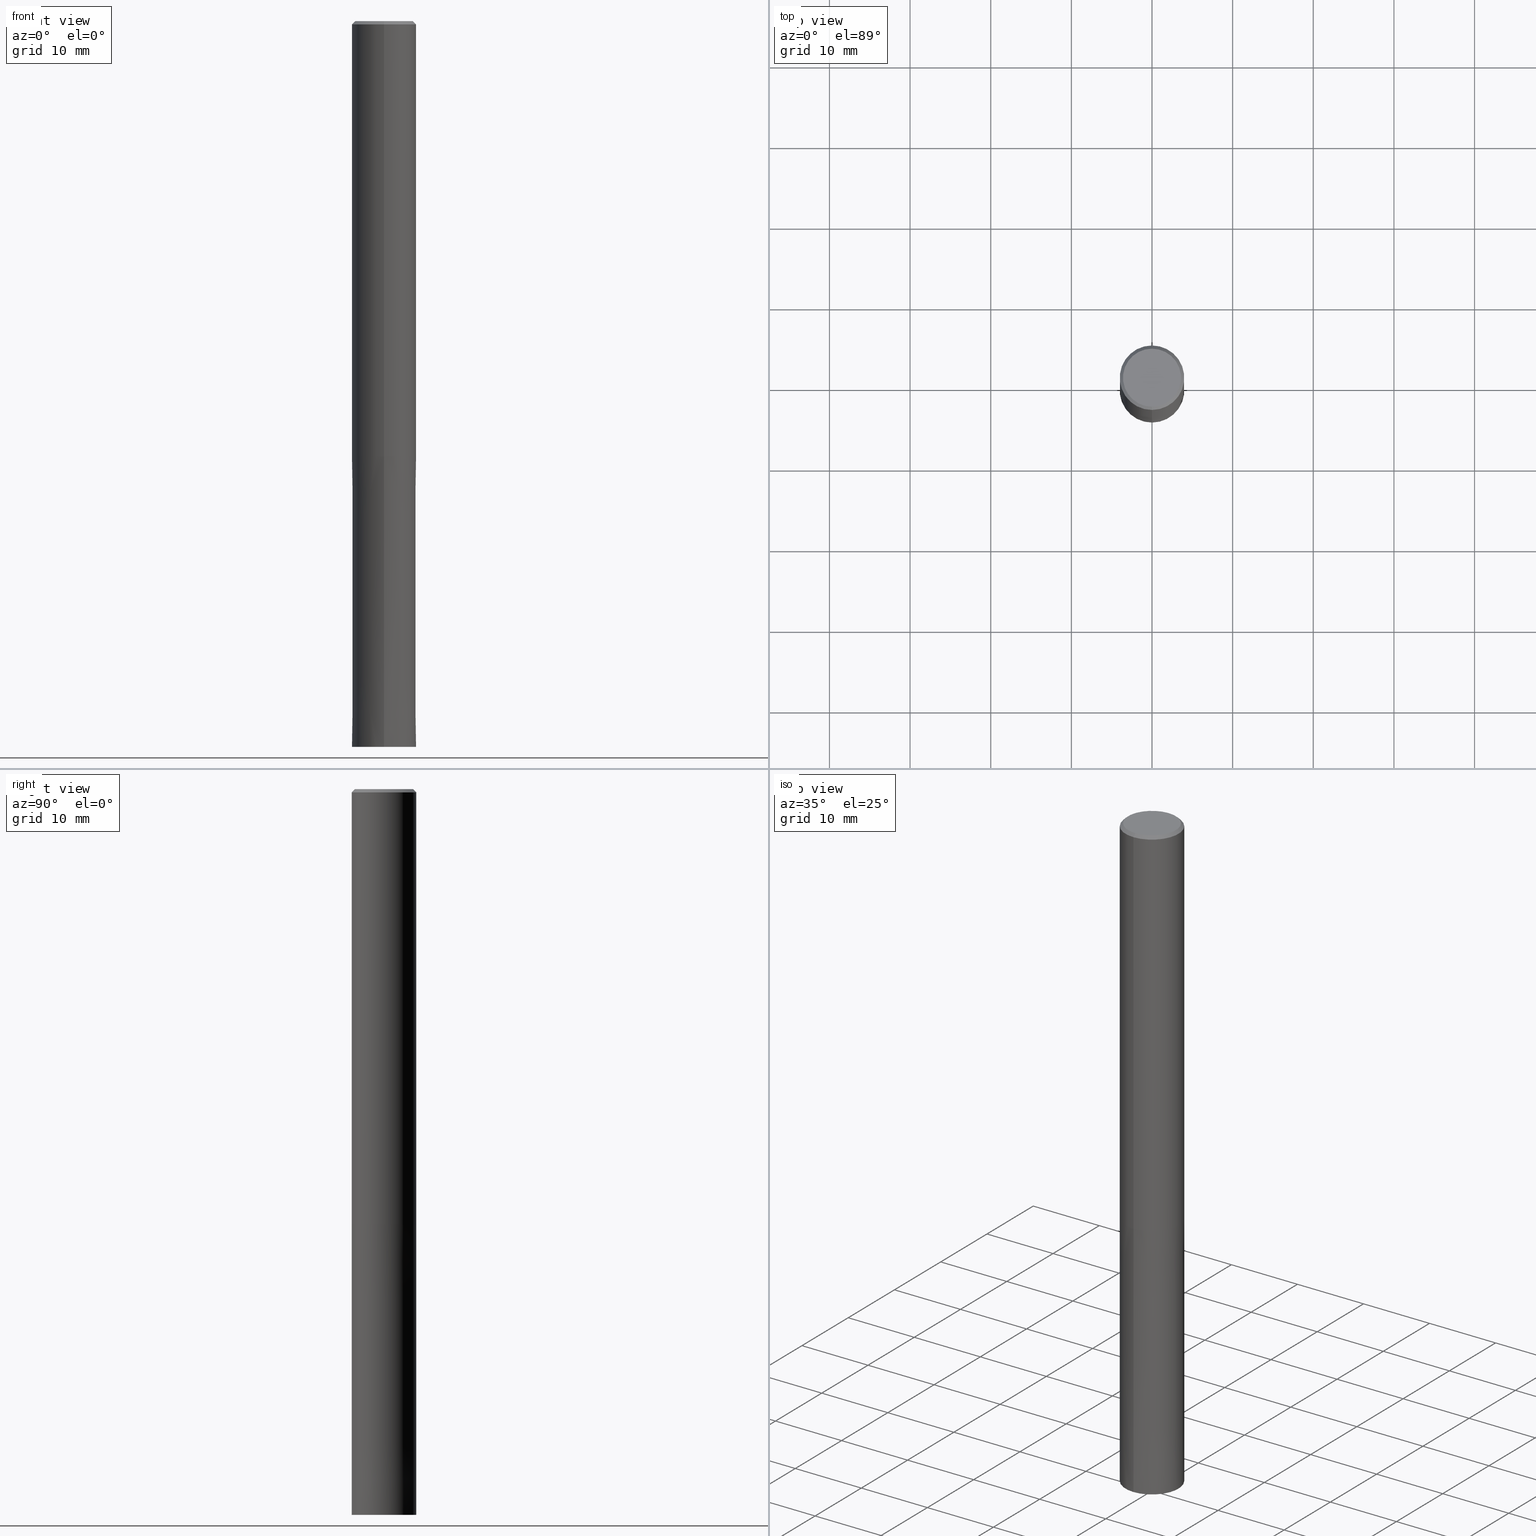
[diagram: canonical four-view strip — front | top / right | iso, engineering-drawing reading convention]
A machine part, canonical four-view strip (front | top / right | iso — engineering-drawing reading convention). The complete STEP part file that produces these views, byte-faithful:
ISO-10303-21;
HEADER;
FILE_DESCRIPTION(('no description'),'unknown implementation level');
FILE_NAME('HMS6080-3600-Huellk.stp','  ',('CIMSOURCE GmbH'),('CADClick - KiM GmbH - www.kimweb.de'),'unknown preprocess','ACIS','unknown authorization');
FILE_SCHEMA(('automotive_design'));
ENDSEC;
DATA;
#1=MECHANICAL_DESIGN_GEOMETRIC_PRESENTATION_REPRESENTATION(' ',(#14,#15,#16,#17,#18,#19,#20,#21,#22,#23,#24,#25,#26,#27,#28,#29,#30,#31,#32,#33,#34,#35,#36,#37,#38,#39,#40,#41,#42,#43,#44,#45,#46,#47,#48,#49,#50,#51,#52,#53,#54,#55,#56,#57,#58,#59,#60,#61,#62,#63,#64,#65,#66,#67,#68,#69,#70,#71,#72,#73,#74,#75,#76),#10);
#2=PRODUCT_DEFINITION_CONTEXT('',#77,'design');
#3=APPLICATION_PROTOCOL_DEFINITION('INTERNATIONAL STANDARD','automotive_design',1994,#77);
#4=PRODUCT_CATEGORY_RELATIONSHIP('NONE','NONE',#78,#79);
#5=SHAPE_DEFINITION_REPRESENTATION(#80,#81);
#6=PRODUCT_DEFINITION_CONTEXT('',#82,'design');
#7=APPLICATION_PROTOCOL_DEFINITION('INTERNATIONAL STANDARD','automotive_design',1994,#82);
#8=PRODUCT_CATEGORY_RELATIONSHIP('NONE','NONE',#83,#84);
#9=SHAPE_DEFINITION_REPRESENTATION(#85,#86);
#10= (GEOMETRIC_REPRESENTATION_CONTEXT(3)GLOBAL_UNCERTAINTY_ASSIGNED_CONTEXT((#89))GLOBAL_UNIT_ASSIGNED_CONTEXT((#91,#92,#93))REPRESENTATION_CONTEXT('NONE','WORKSPACE'));
#14=STYLED_ITEM('',(#95),#96);
#15=STYLED_ITEM('',(#97),#98);
#16=STYLED_ITEM('',(#99),#100);
#17=STYLED_ITEM('',(#101),#102);
#18=STYLED_ITEM('',(#103),#104);
#19=STYLED_ITEM('',(#105),#106);
#20=STYLED_ITEM('',(#107),#108);
#21=STYLED_ITEM('',(#109),#110);
#22=STYLED_ITEM('',(#111),#112);
#23=STYLED_ITEM('',(#113),#114);
#24=STYLED_ITEM('',(#115),#116);
#25=STYLED_ITEM('',(#117),#118);
#26=STYLED_ITEM('',(#119),#120);
#27=STYLED_ITEM('',(#121),#122);
#28=STYLED_ITEM('',(#123),#124);
#29=STYLED_ITEM('',(#125),#126);
#30=STYLED_ITEM('',(#127),#128);
#31=STYLED_ITEM('',(#129),#130);
#32=STYLED_ITEM('',(#131),#132);
#33=STYLED_ITEM('',(#133),#134);
#34=STYLED_ITEM('',(#135),#136);
#35=STYLED_ITEM('',(#137),#138);
#36=STYLED_ITEM('',(#139),#140);
#37=STYLED_ITEM('',(#141),#142);
#38=STYLED_ITEM('',(#143),#144);
#39=STYLED_ITEM('',(#145),#146);
#40=STYLED_ITEM('',(#147),#148);
#41=STYLED_ITEM('',(#149),#150);
#42=STYLED_ITEM('',(#151),#152);
#43=STYLED_ITEM('',(#153),#154);
#44=STYLED_ITEM('',(#155),#156);
#45=STYLED_ITEM('',(#157),#158);
#46=STYLED_ITEM('',(#159),#160);
#47=STYLED_ITEM('',(#161),#162);
#48=STYLED_ITEM('',(#163),#164);
#49=STYLED_ITEM('',(#165),#166);
#50=STYLED_ITEM('',(#167),#168);
#51=STYLED_ITEM('',(#169),#170);
#52=STYLED_ITEM('',(#171),#172);
#53=STYLED_ITEM('',(#173),#174);
#54=STYLED_ITEM('',(#175),#176);
#55=STYLED_ITEM('',(#177),#178);
#56=STYLED_ITEM('',(#179),#180);
#57=STYLED_ITEM('',(#181),#182);
#58=STYLED_ITEM('',(#183),#184);
#59=STYLED_ITEM('',(#185),#186);
#60=STYLED_ITEM('',(#187),#188);
#61=STYLED_ITEM('',(#189),#190);
#62=STYLED_ITEM('',(#191),#192);
#63=STYLED_ITEM('',(#193),#194);
#64=STYLED_ITEM('',(#195),#196);
#65=STYLED_ITEM('',(#197),#198);
#66=STYLED_ITEM('',(#199),#200);
#67=STYLED_ITEM('',(#201),#202);
#68=STYLED_ITEM('',(#203),#204);
#69=STYLED_ITEM('',(#205),#206);
#70=STYLED_ITEM('',(#207),#208);
#71=STYLED_ITEM('',(#209),#210);
#72=STYLED_ITEM('',(#211),#212);
#73=STYLED_ITEM('',(#213),#214);
#74=STYLED_ITEM('',(#215),#216);
#75=STYLED_ITEM('',(#217),#218);
#76=STYLED_ITEM('',(#219),#220);
#77=APPLICATION_CONTEXT(' ');
#78=PRODUCT_CATEGORY('part','NONE');
#79=PRODUCT_RELATED_PRODUCT_CATEGORY('detail',' ',(#221));
#80=PRODUCT_DEFINITION_SHAPE('NONE','NONE',#222);
#81=ADVANCED_BREP_SHAPE_REPRESENTATION('1',(#212,#223),#10);
#82=APPLICATION_CONTEXT(' ');
#83=PRODUCT_CATEGORY('part','NONE');
#84=PRODUCT_RELATED_PRODUCT_CATEGORY('detail',' ',(#224));
#85=PRODUCT_DEFINITION_SHAPE('NONE','NONE',#225);
#86=ADVANCED_BREP_SHAPE_REPRESENTATION('2',(#110,#226),#10);
#89=UNCERTAINTY_MEASURE_WITH_UNIT(LENGTH_MEASURE(1.0E-006),#91,'','');
#91= (CONVERSION_BASED_UNIT('MILLIMETRE',#229)LENGTH_UNIT()NAMED_UNIT(#232));
#92= (NAMED_UNIT(#234)PLANE_ANGLE_UNIT()SI_UNIT($,.RADIAN.));
#93= (NAMED_UNIT(#234)SOLID_ANGLE_UNIT()SI_UNIT($,.STERADIAN.));
#95=PRESENTATION_STYLE_ASSIGNMENT((#240));
#96=ADVANCED_FACE('',(#241),#242,.T.);
#97=PRESENTATION_STYLE_ASSIGNMENT((#243));
#98=EDGE_CURVE('',#214,#142,#244,.T.);
#99=PRESENTATION_STYLE_ASSIGNMENT((#245));
#100=EDGE_CURVE('',#174,#206,#246,.T.);
#101=PRESENTATION_STYLE_ASSIGNMENT((#247));
#102=EDGE_CURVE('',#152,#182,#248,.T.);
#103=PRESENTATION_STYLE_ASSIGNMENT((#249));
#104=EDGE_CURVE('',#164,#202,#250,.T.);
#105=PRESENTATION_STYLE_ASSIGNMENT((#251));
#106=EDGE_CURVE('',#206,#108,#252,.T.);
#107=PRESENTATION_STYLE_ASSIGNMENT((#253));
#108=VERTEX_POINT('',#254);
#109=PRESENTATION_STYLE_ASSIGNMENT((#255));
#110=MANIFOLD_SOLID_BREP('2',#256);
#111=PRESENTATION_STYLE_ASSIGNMENT((#257));
#112=VERTEX_POINT('',#258);
#113=PRESENTATION_STYLE_ASSIGNMENT((#259));
#114=ADVANCED_FACE('',(#260),#261,.T.);
#115=PRESENTATION_STYLE_ASSIGNMENT((#262));
#116=ADVANCED_FACE('',(#263),#264,.T.);
#117=PRESENTATION_STYLE_ASSIGNMENT((#265));
#118=EDGE_CURVE('',#188,#164,#266,.T.);
#119=PRESENTATION_STYLE_ASSIGNMENT((#267));
#120=ADVANCED_FACE('',(#268),#269,.F.);
#121=PRESENTATION_STYLE_ASSIGNMENT((#270));
#122=EDGE_CURVE('',#214,#218,#271,.T.);
#123=PRESENTATION_STYLE_ASSIGNMENT((#272));
#124=EDGE_CURVE('',#108,#206,#273,.T.);
#125=PRESENTATION_STYLE_ASSIGNMENT((#274));
#126=ADVANCED_FACE('',(#275),#276,.T.);
#127=PRESENTATION_STYLE_ASSIGNMENT((#277));
#128=EDGE_CURVE('',#142,#112,#278,.T.);
#129=PRESENTATION_STYLE_ASSIGNMENT((#279));
#130=ADVANCED_FACE('',(#280,#281),#282,.T.);
#131=PRESENTATION_STYLE_ASSIGNMENT((#283));
#132=ADVANCED_FACE('',(#284),#285,.F.);
#133=PRESENTATION_STYLE_ASSIGNMENT((#286));
#134=EDGE_CURVE('',#218,#214,#287,.T.);
#135=PRESENTATION_STYLE_ASSIGNMENT((#288));
#136=ADVANCED_FACE('',(#289),#290,.T.);
#137=PRESENTATION_STYLE_ASSIGNMENT((#291));
#138=EDGE_CURVE('',#202,#164,#292,.T.);
#139=PRESENTATION_STYLE_ASSIGNMENT((#293));
#140=VERTEX_POINT('',#294);
#141=PRESENTATION_STYLE_ASSIGNMENT((#295));
#142=VERTEX_POINT('',#296);
#143=PRESENTATION_STYLE_ASSIGNMENT((#297));
#144=EDGE_CURVE('',#202,#170,#298,.T.);
#145=PRESENTATION_STYLE_ASSIGNMENT((#299));
#146=EDGE_CURVE('',#196,#150,#300,.T.);
#147=PRESENTATION_STYLE_ASSIGNMENT((#301));
#148=EDGE_CURVE('',#140,#152,#302,.T.);
#149=PRESENTATION_STYLE_ASSIGNMENT((#303));
#150=VERTEX_POINT('',#304);
#151=PRESENTATION_STYLE_ASSIGNMENT((#305));
#152=VERTEX_POINT('',#306);
#153=PRESENTATION_STYLE_ASSIGNMENT((#307));
#154=EDGE_CURVE('',#170,#188,#308,.T.);
#155=PRESENTATION_STYLE_ASSIGNMENT((#309));
#156=EDGE_CURVE('',#178,#174,#310,.T.);
#157=PRESENTATION_STYLE_ASSIGNMENT((#311));
#158=EDGE_CURVE('',#182,#200,#312,.T.);
#159=PRESENTATION_STYLE_ASSIGNMENT((#313));
#160=ADVANCED_FACE('',(#314,#315),#316,.T.);
#161=PRESENTATION_STYLE_ASSIGNMENT((#317));
#162=ADVANCED_FACE('',(#318),#319,.T.);
#163=PRESENTATION_STYLE_ASSIGNMENT((#320));
#164=VERTEX_POINT('',#321);
#165=PRESENTATION_STYLE_ASSIGNMENT((#322));
#166=EDGE_CURVE('',#182,#150,#323,.T.);
#167=PRESENTATION_STYLE_ASSIGNMENT((#324));
#168=EDGE_CURVE('',#150,#140,#325,.T.);
#169=PRESENTATION_STYLE_ASSIGNMENT((#326));
#170=VERTEX_POINT('',#327);
#171=PRESENTATION_STYLE_ASSIGNMENT((#328));
#172=EDGE_CURVE('',#200,#196,#329,.T.);
#173=PRESENTATION_STYLE_ASSIGNMENT((#330));
#174=VERTEX_POINT('',#331);
#175=PRESENTATION_STYLE_ASSIGNMENT((#332));
#176=ADVANCED_FACE('',(#333),#334,.T.);
#177=PRESENTATION_STYLE_ASSIGNMENT((#335));
#178=VERTEX_POINT('',#336);
#179=PRESENTATION_STYLE_ASSIGNMENT((#337));
#180=EDGE_CURVE('',#152,#140,#338,.T.);
#181=PRESENTATION_STYLE_ASSIGNMENT((#339));
#182=VERTEX_POINT('',#340);
#183=PRESENTATION_STYLE_ASSIGNMENT((#341));
#184=ADVANCED_FACE('',(#342),#343,.T.);
#185=PRESENTATION_STYLE_ASSIGNMENT((#344));
#186=ADVANCED_FACE('',(#345,#346),#347,.T.);
#187=PRESENTATION_STYLE_ASSIGNMENT((#348));
#188=VERTEX_POINT('',#349);
#189=PRESENTATION_STYLE_ASSIGNMENT((#350));
#190=EDGE_CURVE('',#174,#178,#351,.T.);
#191=PRESENTATION_STYLE_ASSIGNMENT((#352));
#192=ADVANCED_FACE('',(#353),#354,.T.);
#193=PRESENTATION_STYLE_ASSIGNMENT((#355));
#194=EDGE_CURVE('',#112,#142,#356,.T.);
#195=PRESENTATION_STYLE_ASSIGNMENT((#357));
#196=VERTEX_POINT('',#358);
#197=PRESENTATION_STYLE_ASSIGNMENT((#359));
#198=EDGE_CURVE('',#108,#178,#360,.T.);
#199=PRESENTATION_STYLE_ASSIGNMENT((#361));
#200=VERTEX_POINT('',#362);
#201=PRESENTATION_STYLE_ASSIGNMENT((#363));
#202=VERTEX_POINT('',#364);
#203=PRESENTATION_STYLE_ASSIGNMENT((#365));
#204=ADVANCED_FACE('',(#366),#367,.T.);
#205=PRESENTATION_STYLE_ASSIGNMENT((#368));
#206=VERTEX_POINT('',#369);
#207=PRESENTATION_STYLE_ASSIGNMENT((#370));
#208=EDGE_CURVE('',#196,#200,#371,.T.);
#209=PRESENTATION_STYLE_ASSIGNMENT((#372));
#210=EDGE_CURVE('',#150,#182,#373,.T.);
#211=PRESENTATION_STYLE_ASSIGNMENT((#374));
#212=MANIFOLD_SOLID_BREP('1',#375);
#213=PRESENTATION_STYLE_ASSIGNMENT((#376));
#214=VERTEX_POINT('',#377);
#215=PRESENTATION_STYLE_ASSIGNMENT((#378));
#216=EDGE_CURVE('',#112,#218,#379,.T.);
#217=PRESENTATION_STYLE_ASSIGNMENT((#380));
#218=VERTEX_POINT('',#381);
#219=PRESENTATION_STYLE_ASSIGNMENT((#382));
#220=EDGE_CURVE('',#188,#170,#383,.T.);
#221=PRODUCT('1','1','PART-1-DESC',(#384));
#222=PRODUCT_DEFINITION('NONE','NONE',#385,#2);
#223=AXIS2_PLACEMENT_3D('',#386,#387,#388);
#224=PRODUCT('2','2','PART-2-DESC',(#389));
#225=PRODUCT_DEFINITION('NONE','NONE',#390,#6);
#226=AXIS2_PLACEMENT_3D('',#391,#392,#393);
#229=LENGTH_MEASURE_WITH_UNIT(LENGTH_MEASURE(1.0),#394);
#232=DIMENSIONAL_EXPONENTS(1.0,0.0,0.0,0.0,0.0,0.0,0.0);
#234=DIMENSIONAL_EXPONENTS(0.0,0.0,0.0,0.0,0.0,0.0,0.0);
#240=SURFACE_STYLE_USAGE(.BOTH.,#395);
#241=FACE_OUTER_BOUND('',#396,.T.);
#242=CYLINDRICAL_SURFACE('',#397,1.8);
#243=CURVE_STYLE('',#398,POSITIVE_LENGTH_MEASURE(1.0E-006),#399);
#244=LINE('',#400,#401);
#245=CURVE_STYLE('',#402,POSITIVE_LENGTH_MEASURE(1.0E-006),#403);
#246=LINE('',#404,#405);
#247=CURVE_STYLE('',#406,POSITIVE_LENGTH_MEASURE(1.0E-006),#407);
#248=LINE('',#408,#409);
#249=CURVE_STYLE('',#410,POSITIVE_LENGTH_MEASURE(1.0E-006),#411);
#250=CIRCLE('',#412,1.8);
#251=CURVE_STYLE('',#413,POSITIVE_LENGTH_MEASURE(1.0E-006),#414);
#252=CIRCLE('',#415,3.9999);
#253=POINT_STYLE(' ',#416,POSITIVE_LENGTH_MEASURE(1.0E-006),#417);
#254=CARTESIAN_POINT('',(0.0,3.9999,-54.0));
#255=SURFACE_STYLE_USAGE(.BOTH.,#418);
#256=CLOSED_SHELL('',(#132,#162,#160,#126,#130,#120));
#257=POINT_STYLE(' ',#419,POSITIVE_LENGTH_MEASURE(1.0E-006),#420);
#258=CARTESIAN_POINT('',(0.0,1.8,-54.0));
#259=SURFACE_STYLE_USAGE(.BOTH.,#421);
#260=FACE_OUTER_BOUND('',#422,.T.);
#261=PLANE('',#423);
#262=SURFACE_STYLE_USAGE(.BOTH.,#424);
#263=FACE_OUTER_BOUND('',#425,.T.);
#264=CONICAL_SURFACE('',#426,3.8,0.78539816339745);
#265=CURVE_STYLE('',#427,POSITIVE_LENGTH_MEASURE(1.0E-006),#428);
#266=LINE('',#429,#430);
#267=SURFACE_STYLE_USAGE(.BOTH.,#431);
#268=FACE_OUTER_BOUND('',#432,.T.);
#269=CYLINDRICAL_SURFACE('',#433,1.8);
#270=CURVE_STYLE('',#434,POSITIVE_LENGTH_MEASURE(1.0E-006),#435);
#271=CIRCLE('',#436,1.8);
#272=CURVE_STYLE('',#437,POSITIVE_LENGTH_MEASURE(1.0E-006),#438);
#273=CIRCLE('',#439,3.9999);
#274=SURFACE_STYLE_USAGE(.BOTH.,#440);
#275=FACE_OUTER_BOUND('',#441,.T.);
#276=CONICAL_SURFACE('',#442,3.99995,2.7777777777765E-006);
#277=CURVE_STYLE('',#443,POSITIVE_LENGTH_MEASURE(1.0E-006),#444);
#278=CIRCLE('',#445,1.8);
#279=SURFACE_STYLE_USAGE(.BOTH.,#446);
#280=FACE_OUTER_BOUND('',#447,.T.);
#281=FACE_BOUND('',#448,.T.);
#282=PLANE('',#449);
#283=SURFACE_STYLE_USAGE(.BOTH.,#450);
#284=FACE_OUTER_BOUND('',#451,.T.);
#285=CYLINDRICAL_SURFACE('',#452,1.8);
#286=CURVE_STYLE('',#453,POSITIVE_LENGTH_MEASURE(1.0E-006),#454);
#287=CIRCLE('',#455,1.8);
#288=SURFACE_STYLE_USAGE(.BOTH.,#456);
#289=FACE_OUTER_BOUND('',#457,.T.);
#290=CONICAL_SURFACE('',#458,3.8,0.78539816339745);
#291=CURVE_STYLE('',#459,POSITIVE_LENGTH_MEASURE(1.0E-006),#460);
#292=CIRCLE('',#461,1.8);
#293=POINT_STYLE(' ',#462,POSITIVE_LENGTH_MEASURE(1.0E-006),#463);
#294=CARTESIAN_POINT('',(4.40858287376056E-016,-3.6,0.0));
#295=POINT_STYLE(' ',#464,POSITIVE_LENGTH_MEASURE(1.0E-006),#465);
#296=CARTESIAN_POINT('',(2.20429143688028E-016,-1.8,-54.0));
#297=CURVE_STYLE('',#466,POSITIVE_LENGTH_MEASURE(1.0E-006),#467);
#298=LINE('',#468,#469);
#299=CURVE_STYLE('',#470,POSITIVE_LENGTH_MEASURE(1.0E-006),#471);
#300=LINE('',#472,#473);
#301=CURVE_STYLE('',#474,POSITIVE_LENGTH_MEASURE(1.0E-006),#475);
#302=CIRCLE('',#476,3.6);
#303=POINT_STYLE(' ',#477,POSITIVE_LENGTH_MEASURE(1.0E-006),#478);
#304=CARTESIAN_POINT('',(4.89842541528951E-016,-4.0,-0.399999999999999));
#305=POINT_STYLE(' ',#479,POSITIVE_LENGTH_MEASURE(1.0E-006),#480);
#306=CARTESIAN_POINT('',(0.0,3.6,0.0));
#307=CURVE_STYLE('',#481,POSITIVE_LENGTH_MEASURE(1.0E-006),#482);
#308=CIRCLE('',#483,1.8);
#309=CURVE_STYLE('',#484,POSITIVE_LENGTH_MEASURE(1.0E-006),#485);
#310=CIRCLE('',#486,4.0);
#311=CURVE_STYLE('',#487,POSITIVE_LENGTH_MEASURE(1.0E-006),#488);
#312=LINE('',#489,#490);
#313=SURFACE_STYLE_USAGE(.BOTH.,#491);
#314=FACE_OUTER_BOUND('',#492,.T.);
#315=FACE_BOUND('',#493,.T.);
#316=PLANE('',#494);
#317=SURFACE_STYLE_USAGE(.BOTH.,#495);
#318=FACE_OUTER_BOUND('',#496,.T.);
#319=CONICAL_SURFACE('',#497,3.99995,2.7777777777765E-006);
#320=POINT_STYLE(' ',#498,POSITIVE_LENGTH_MEASURE(1.0E-006),#499);
#321=CARTESIAN_POINT('',(0.0,1.8,-89.9));
#322=CURVE_STYLE('',#500,POSITIVE_LENGTH_MEASURE(1.0E-006),#501);
#323=CIRCLE('',#502,4.0);
#324=CURVE_STYLE('',#503,POSITIVE_LENGTH_MEASURE(1.0E-006),#504);
#325=LINE('',#505,#506);
#326=POINT_STYLE(' ',#507,POSITIVE_LENGTH_MEASURE(1.0E-006),#508);
#327=CARTESIAN_POINT('',(2.20429143688028E-016,-1.8,-54.0));
#328=CURVE_STYLE('',#509,POSITIVE_LENGTH_MEASURE(1.0E-006),#510);
#329=CIRCLE('',#511,4.0);
#330=POINT_STYLE(' ',#512,POSITIVE_LENGTH_MEASURE(1.0E-006),#513);
#331=CARTESIAN_POINT('',(4.89842541528951E-016,-4.0,-90.0));
#332=SURFACE_STYLE_USAGE(.BOTH.,#514);
#333=FACE_OUTER_BOUND('',#515,.T.);
#334=CYLINDRICAL_SURFACE('',#516,4.0);
#335=POINT_STYLE(' ',#517,POSITIVE_LENGTH_MEASURE(1.0E-006),#518);
#336=CARTESIAN_POINT('',(0.0,4.0,-90.0));
#337=CURVE_STYLE('',#519,POSITIVE_LENGTH_MEASURE(1.0E-006),#520);
#338=CIRCLE('',#521,3.6);
#339=POINT_STYLE(' ',#522,POSITIVE_LENGTH_MEASURE(1.0E-006),#523);
#340=CARTESIAN_POINT('',(0.0,4.0,-0.399999999999999));
#341=SURFACE_STYLE_USAGE(.BOTH.,#524);
#342=FACE_OUTER_BOUND('',#525,.T.);
#343=CYLINDRICAL_SURFACE('',#526,4.0);
#344=SURFACE_STYLE_USAGE(.BOTH.,#527);
#345=FACE_OUTER_BOUND('',#528,.T.);
#346=FACE_BOUND('',#529,.T.);
#347=PLANE('',#530);
#348=POINT_STYLE(' ',#531,POSITIVE_LENGTH_MEASURE(1.0E-006),#532);
#349=CARTESIAN_POINT('',(0.0,1.8,-54.0));
#350=CURVE_STYLE('',#533,POSITIVE_LENGTH_MEASURE(1.0E-006),#534);
#351=CIRCLE('',#535,4.0);
#352=SURFACE_STYLE_USAGE(.BOTH.,#536);
#353=FACE_OUTER_BOUND('',#537,.T.);
#354=PLANE('',#538);
#355=CURVE_STYLE('',#539,POSITIVE_LENGTH_MEASURE(1.0E-006),#540);
#356=CIRCLE('',#541,1.8);
#357=POINT_STYLE(' ',#542,POSITIVE_LENGTH_MEASURE(1.0E-006),#543);
#358=CARTESIAN_POINT('',(4.89842541528951E-016,-4.0,-54.0));
#359=CURVE_STYLE('',#544,POSITIVE_LENGTH_MEASURE(1.0E-006),#545);
#360=LINE('',#546,#547);
#361=POINT_STYLE(' ',#548,POSITIVE_LENGTH_MEASURE(1.0E-006),#549);
#362=CARTESIAN_POINT('',(0.0,4.0,-54.0));
#363=POINT_STYLE(' ',#550,POSITIVE_LENGTH_MEASURE(1.0E-006),#551);
#364=CARTESIAN_POINT('',(2.20429143688028E-016,-1.8,-89.9));
#365=SURFACE_STYLE_USAGE(.BOTH.,#552);
#366=FACE_OUTER_BOUND('',#553,.T.);
#367=CYLINDRICAL_SURFACE('',#554,1.8);
#368=POINT_STYLE(' ',#555,POSITIVE_LENGTH_MEASURE(1.0E-006),#556);
#369=CARTESIAN_POINT('',(4.89830295465413E-016,-3.9999,-54.0));
#370=CURVE_STYLE('',#557,POSITIVE_LENGTH_MEASURE(1.0E-006),#558);
#371=CIRCLE('',#559,4.0);
#372=CURVE_STYLE('',#560,POSITIVE_LENGTH_MEASURE(1.0E-006),#561);
#373=CIRCLE('',#562,4.0);
#374=SURFACE_STYLE_USAGE(.BOTH.,#563);
#375=CLOSED_SHELL('',(#96,#176,#116,#186,#114,#136,#184,#204,#192));
#376=POINT_STYLE(' ',#564,POSITIVE_LENGTH_MEASURE(1.0E-006),#565);
#377=CARTESIAN_POINT('',(2.20429143688028E-016,-1.8,-90.0));
#378=CURVE_STYLE('',#566,POSITIVE_LENGTH_MEASURE(1.0E-006),#567);
#379=LINE('',#568,#569);
#380=POINT_STYLE(' ',#570,POSITIVE_LENGTH_MEASURE(1.0E-006),#571);
#381=CARTESIAN_POINT('',(0.0,1.8,-90.0));
#382=CURVE_STYLE('',#572,POSITIVE_LENGTH_MEASURE(1.0E-006),#573);
#383=CIRCLE('',#574,1.8);
#384=PRODUCT_CONTEXT('',#77,'mechanical');
#385=PRODUCT_DEFINITION_FORMATION_WITH_SPECIFIED_SOURCE(' ','NONE',#221,.NOT_KNOWN.);
#386=CARTESIAN_POINT('',(0.0,0.0,0.0));
#387=DIRECTION('',(0.0,0.0,1.0));
#388=DIRECTION('',(1.0,0.0,0.0));
#389=PRODUCT_CONTEXT('',#82,'mechanical');
#390=PRODUCT_DEFINITION_FORMATION_WITH_SPECIFIED_SOURCE(' ','NONE',#224,.NOT_KNOWN.);
#391=CARTESIAN_POINT('',(0.0,0.0,0.0));
#392=DIRECTION('',(0.0,0.0,1.0));
#393=DIRECTION('',(1.0,0.0,0.0));
#394= (NAMED_UNIT(#232)LENGTH_UNIT()SI_UNIT(.MILLI.,.METRE.));
#395=SURFACE_SIDE_STYLE('',(#576));
#396=EDGE_LOOP('',(#577,#578,#579,#580));
#397=AXIS2_PLACEMENT_3D('',#581,#582,#583);
#398=DRAUGHTING_PRE_DEFINED_CURVE_FONT('continuous');
#399=COLOUR_RGB('',0.800000011920929,0.800000011920929,0.800000011920929);
#400=CARTESIAN_POINT('',(2.20429143688028E-016,-1.8,-72.0));
#401=VECTOR('',#584,1.0);
#402=DRAUGHTING_PRE_DEFINED_CURVE_FONT('continuous');
#403=COLOUR_RGB('',0.800000011920929,0.800000011920929,0.800000011920929);
#404=CARTESIAN_POINT('',(4.89836418497182E-016,-3.99995,-72.0));
#405=VECTOR('',#585,1.0);
#406=DRAUGHTING_PRE_DEFINED_CURVE_FONT('continuous');
#407=COLOUR_RGB('',0.498039215803146,0.498039215803146,0.498039215803146);
#408=CARTESIAN_POINT('',(-4.65350414452503E-016,3.8,-0.200000000000003));
#409=VECTOR('',#586,1.0);
#410=DRAUGHTING_PRE_DEFINED_CURVE_FONT('continuous');
#411=COLOUR_RGB('',0.498039215803146,0.498039215803146,0.498039215803146);
#412=AXIS2_PLACEMENT_3D('',#587,#588,#589);
#413=DRAUGHTING_PRE_DEFINED_CURVE_FONT('continuous');
#414=COLOUR_RGB('',0.800000011920929,0.800000011920929,0.800000011920929);
#415=AXIS2_PLACEMENT_3D('',#590,#591,#592);
#416=PRE_DEFINED_MARKER('');
#417=COLOUR_RGB('',0.800000011920929,0.800000011920929,0.800000011920929);
#418=SURFACE_SIDE_STYLE('',(#593));
#419=PRE_DEFINED_MARKER('');
#420=COLOUR_RGB('',0.800000011920929,0.800000011920929,0.800000011920929);
#421=SURFACE_SIDE_STYLE('',(#594));
#422=EDGE_LOOP('',(#595,#596));
#423=AXIS2_PLACEMENT_3D('',#597,#598,#599);
#424=SURFACE_SIDE_STYLE('',(#600));
#425=EDGE_LOOP('',(#601,#602,#603,#604));
#426=AXIS2_PLACEMENT_3D('',#605,#606,#607);
#427=DRAUGHTING_PRE_DEFINED_CURVE_FONT('continuous');
#428=COLOUR_RGB('',0.498039215803146,0.498039215803146,0.498039215803146);
#429=CARTESIAN_POINT('',(-2.20429143688028E-016,1.8,-71.95));
#430=VECTOR('',#608,1.0);
#431=SURFACE_SIDE_STYLE('',(#609));
#432=EDGE_LOOP('',(#610,#611,#612,#613));
#433=AXIS2_PLACEMENT_3D('',#614,#615,#616);
#434=DRAUGHTING_PRE_DEFINED_CURVE_FONT('continuous');
#435=COLOUR_RGB('',0.800000011920929,0.800000011920929,0.800000011920929);
#436=AXIS2_PLACEMENT_3D('',#617,#618,#619);
#437=DRAUGHTING_PRE_DEFINED_CURVE_FONT('continuous');
#438=COLOUR_RGB('',0.800000011920929,0.800000011920929,0.800000011920929);
#439=AXIS2_PLACEMENT_3D('',#620,#621,#622);
#440=SURFACE_SIDE_STYLE('',(#623));
#441=EDGE_LOOP('',(#624,#625,#626,#627));
#442=AXIS2_PLACEMENT_3D('',#628,#629,#630);
#443=DRAUGHTING_PRE_DEFINED_CURVE_FONT('continuous');
#444=COLOUR_RGB('',0.800000011920929,0.800000011920929,0.800000011920929);
#445=AXIS2_PLACEMENT_3D('',#631,#632,#633);
#446=SURFACE_SIDE_STYLE('',(#634));
#447=EDGE_LOOP('',(#635,#636));
#448=EDGE_LOOP('',(#637,#638));
#449=AXIS2_PLACEMENT_3D('',#639,#640,#641);
#450=SURFACE_SIDE_STYLE('',(#642));
#451=EDGE_LOOP('',(#643,#644,#645,#646));
#452=AXIS2_PLACEMENT_3D('',#647,#648,#649);
#453=DRAUGHTING_PRE_DEFINED_CURVE_FONT('continuous');
#454=COLOUR_RGB('',0.800000011920929,0.800000011920929,0.800000011920929);
#455=AXIS2_PLACEMENT_3D('',#650,#651,#652);
#456=SURFACE_SIDE_STYLE('',(#653));
#457=EDGE_LOOP('',(#654,#655,#656,#657));
#458=AXIS2_PLACEMENT_3D('',#658,#659,#660);
#459=DRAUGHTING_PRE_DEFINED_CURVE_FONT('continuous');
#460=COLOUR_RGB('',0.498039215803146,0.498039215803146,0.498039215803146);
#461=AXIS2_PLACEMENT_3D('',#661,#662,#663);
#462=PRE_DEFINED_MARKER('');
#463=COLOUR_RGB('',0.498039215803146,0.498039215803146,0.498039215803146);
#464=PRE_DEFINED_MARKER('');
#465=COLOUR_RGB('',0.800000011920929,0.800000011920929,0.800000011920929);
#466=DRAUGHTING_PRE_DEFINED_CURVE_FONT('continuous');
#467=COLOUR_RGB('',0.498039215803146,0.498039215803146,0.498039215803146);
#468=CARTESIAN_POINT('',(2.20429143688028E-016,-1.8,-71.95));
#469=VECTOR('',#664,1.0);
#470=DRAUGHTING_PRE_DEFINED_CURVE_FONT('continuous');
#471=COLOUR_RGB('',0.498039215803146,0.498039215803146,0.498039215803146);
#472=CARTESIAN_POINT('',(4.89842541528951E-016,-4.0,-27.2));
#473=VECTOR('',#665,1.0);
#474=DRAUGHTING_PRE_DEFINED_CURVE_FONT('continuous');
#475=COLOUR_RGB('',0.498039215803146,0.498039215803146,0.498039215803146);
#476=AXIS2_PLACEMENT_3D('',#666,#667,#668);
#477=PRE_DEFINED_MARKER('');
#478=COLOUR_RGB('',0.498039215803146,0.498039215803146,0.498039215803146);
#479=PRE_DEFINED_MARKER('');
#480=COLOUR_RGB('',0.498039215803146,0.498039215803146,0.498039215803146);
#481=DRAUGHTING_PRE_DEFINED_CURVE_FONT('continuous');
#482=COLOUR_RGB('',0.498039215803146,0.498039215803146,0.498039215803146);
#483=AXIS2_PLACEMENT_3D('',#669,#670,#671);
#484=DRAUGHTING_PRE_DEFINED_CURVE_FONT('continuous');
#485=COLOUR_RGB('',0.800000011920929,0.800000011920929,0.800000011920929);
#486=AXIS2_PLACEMENT_3D('',#672,#673,#674);
#487=DRAUGHTING_PRE_DEFINED_CURVE_FONT('continuous');
#488=COLOUR_RGB('',0.498039215803146,0.498039215803146,0.498039215803146);
#489=CARTESIAN_POINT('',(-4.89842541528951E-016,4.0,-27.2));
#490=VECTOR('',#675,1.0);
#491=SURFACE_SIDE_STYLE('',(#676));
#492=EDGE_LOOP('',(#677,#678));
#493=EDGE_LOOP('',(#679,#680));
#494=AXIS2_PLACEMENT_3D('',#681,#682,#683);
#495=SURFACE_SIDE_STYLE('',(#684));
#496=EDGE_LOOP('',(#685,#686,#687,#688));
#497=AXIS2_PLACEMENT_3D('',#689,#690,#691);
#498=PRE_DEFINED_MARKER('');
#499=COLOUR_RGB('',0.498039215803146,0.498039215803146,0.498039215803146);
#500=DRAUGHTING_PRE_DEFINED_CURVE_FONT('continuous');
#501=COLOUR_RGB('',0.498039215803146,0.498039215803146,0.498039215803146);
#502=AXIS2_PLACEMENT_3D('',#692,#693,#694);
#503=DRAUGHTING_PRE_DEFINED_CURVE_FONT('continuous');
#504=COLOUR_RGB('',0.498039215803146,0.498039215803146,0.498039215803146);
#505=CARTESIAN_POINT('',(4.65350414452503E-016,-3.8,-0.200000000000003));
#506=VECTOR('',#695,1.0);
#507=PRE_DEFINED_MARKER('');
#508=COLOUR_RGB('',0.498039215803146,0.498039215803146,0.498039215803146);
#509=DRAUGHTING_PRE_DEFINED_CURVE_FONT('continuous');
#510=COLOUR_RGB('',0.498039215803146,0.498039215803146,0.498039215803146);
#511=AXIS2_PLACEMENT_3D('',#696,#697,#698);
#512=PRE_DEFINED_MARKER('');
#513=COLOUR_RGB('',0.800000011920929,0.800000011920929,0.800000011920929);
#514=SURFACE_SIDE_STYLE('',(#699));
#515=EDGE_LOOP('',(#700,#701,#702,#703));
#516=AXIS2_PLACEMENT_3D('',#704,#705,#706);
#517=PRE_DEFINED_MARKER('');
#518=COLOUR_RGB('',0.800000011920929,0.800000011920929,0.800000011920929);
#519=DRAUGHTING_PRE_DEFINED_CURVE_FONT('continuous');
#520=COLOUR_RGB('',0.498039215803146,0.498039215803146,0.498039215803146);
#521=AXIS2_PLACEMENT_3D('',#707,#708,#709);
#522=PRE_DEFINED_MARKER('');
#523=COLOUR_RGB('',0.498039215803146,0.498039215803146,0.498039215803146);
#524=SURFACE_SIDE_STYLE('',(#710));
#525=EDGE_LOOP('',(#711,#712,#713,#714));
#526=AXIS2_PLACEMENT_3D('',#715,#716,#717);
#527=SURFACE_SIDE_STYLE('',(#718));
#528=EDGE_LOOP('',(#719,#720));
#529=EDGE_LOOP('',(#721,#722));
#530=AXIS2_PLACEMENT_3D('',#723,#724,#725);
#531=PRE_DEFINED_MARKER('');
#532=COLOUR_RGB('',0.498039215803146,0.498039215803146,0.498039215803146);
#533=DRAUGHTING_PRE_DEFINED_CURVE_FONT('continuous');
#534=COLOUR_RGB('',0.800000011920929,0.800000011920929,0.800000011920929);
#535=AXIS2_PLACEMENT_3D('',#726,#727,#728);
#536=SURFACE_SIDE_STYLE('',(#729));
#537=EDGE_LOOP('',(#730,#731));
#538=AXIS2_PLACEMENT_3D('',#732,#733,#734);
#539=DRAUGHTING_PRE_DEFINED_CURVE_FONT('continuous');
#540=COLOUR_RGB('',0.800000011920929,0.800000011920929,0.800000011920929);
#541=AXIS2_PLACEMENT_3D('',#735,#736,#737);
#542=PRE_DEFINED_MARKER('');
#543=COLOUR_RGB('',0.498039215803146,0.498039215803146,0.498039215803146);
#544=DRAUGHTING_PRE_DEFINED_CURVE_FONT('continuous');
#545=COLOUR_RGB('',0.800000011920929,0.800000011920929,0.800000011920929);
#546=CARTESIAN_POINT('',(-4.89836418497182E-016,3.99995,-72.0));
#547=VECTOR('',#738,1.0);
#548=PRE_DEFINED_MARKER('');
#549=COLOUR_RGB('',0.498039215803146,0.498039215803146,0.498039215803146);
#550=PRE_DEFINED_MARKER('');
#551=COLOUR_RGB('',0.498039215803146,0.498039215803146,0.498039215803146);
#552=SURFACE_SIDE_STYLE('',(#739));
#553=EDGE_LOOP('',(#740,#741,#742,#743));
#554=AXIS2_PLACEMENT_3D('',#744,#745,#746);
#555=PRE_DEFINED_MARKER('');
#556=COLOUR_RGB('',0.800000011920929,0.800000011920929,0.800000011920929);
#557=DRAUGHTING_PRE_DEFINED_CURVE_FONT('continuous');
#558=COLOUR_RGB('',0.498039215803146,0.498039215803146,0.498039215803146);
#559=AXIS2_PLACEMENT_3D('',#747,#748,#749);
#560=DRAUGHTING_PRE_DEFINED_CURVE_FONT('continuous');
#561=COLOUR_RGB('',0.498039215803146,0.498039215803146,0.498039215803146);
#562=AXIS2_PLACEMENT_3D('',#750,#751,#752);
#563=SURFACE_SIDE_STYLE('',(#753));
#564=PRE_DEFINED_MARKER('');
#565=COLOUR_RGB('',0.800000011920929,0.800000011920929,0.800000011920929);
#566=DRAUGHTING_PRE_DEFINED_CURVE_FONT('continuous');
#567=COLOUR_RGB('',0.800000011920929,0.800000011920929,0.800000011920929);
#568=CARTESIAN_POINT('',(-2.20429143688028E-016,1.8,-72.0));
#569=VECTOR('',#754,1.0);
#570=PRE_DEFINED_MARKER('');
#571=COLOUR_RGB('',0.800000011920929,0.800000011920929,0.800000011920929);
#572=DRAUGHTING_PRE_DEFINED_CURVE_FONT('continuous');
#573=COLOUR_RGB('',0.498039215803146,0.498039215803146,0.498039215803146);
#574=AXIS2_PLACEMENT_3D('',#755,#756,#757);
#576=SURFACE_STYLE_FILL_AREA(#758);
#577=ORIENTED_EDGE('',*,*,#118,.F.);
#578=ORIENTED_EDGE('',*,*,#220,.T.);
#579=ORIENTED_EDGE('',*,*,#144,.F.);
#580=ORIENTED_EDGE('',*,*,#104,.F.);
#581=CARTESIAN_POINT('',(0.0,0.0,-71.95));
#582=DIRECTION('',(-0.0,-0.0,1.0));
#583=DIRECTION('',(0.0,1.0,0.0));
#584=DIRECTION('',(0.0,-0.0,1.0));
#585=DIRECTION('',(-3.40168431616732E-022,2.77777777777292E-006,0.999999999996142));
#586=DIRECTION('',(-8.65927457071937E-017,0.707106781186549,-0.707106781186546));
#587=CARTESIAN_POINT('',(0.0,0.0,-89.9));
#588=DIRECTION('',(0.0,0.0,-1.0));
#589=DIRECTION('',(0.0,1.0,0.0));
#590=CARTESIAN_POINT('',(0.0,0.0,-54.0));
#591=DIRECTION('',(0.0,0.0,-1.0));
#592=DIRECTION('',(0.0,1.0,0.0));
#593=SURFACE_STYLE_FILL_AREA(#759);
#594=SURFACE_STYLE_FILL_AREA(#760);
#595=ORIENTED_EDGE('',*,*,#180,.F.);
#596=ORIENTED_EDGE('',*,*,#148,.F.);
#597=CARTESIAN_POINT('',(0.0,1.8,0.0));
#598=DIRECTION('',(-0.0,0.0,1.0));
#599=DIRECTION('',(0.0,-1.0,0.0));
#600=SURFACE_STYLE_FILL_AREA(#761);
#601=ORIENTED_EDGE('',*,*,#102,.F.);
#602=ORIENTED_EDGE('',*,*,#180,.T.);
#603=ORIENTED_EDGE('',*,*,#168,.F.);
#604=ORIENTED_EDGE('',*,*,#166,.F.);
#605=CARTESIAN_POINT('',(0.0,0.0,-0.200000000000003));
#606=DIRECTION('',(0.0,-0.0,-1.0));
#607=DIRECTION('',(0.0,1.0,0.0));
#608=DIRECTION('',(0.0,0.0,-1.0));
#609=SURFACE_STYLE_FILL_AREA(#762);
#610=ORIENTED_EDGE('',*,*,#216,.T.);
#611=ORIENTED_EDGE('',*,*,#134,.T.);
#612=ORIENTED_EDGE('',*,*,#98,.T.);
#613=ORIENTED_EDGE('',*,*,#194,.F.);
#614=CARTESIAN_POINT('',(0.0,0.0,-72.0));
#615=DIRECTION('',(-0.0,-0.0,1.0));
#616=DIRECTION('',(0.0,1.0,0.0));
#617=CARTESIAN_POINT('',(0.0,0.0,-90.0));
#618=DIRECTION('',(0.0,0.0,-1.0));
#619=DIRECTION('',(0.0,1.0,0.0));
#620=CARTESIAN_POINT('',(0.0,0.0,-54.0));
#621=DIRECTION('',(0.0,0.0,-1.0));
#622=DIRECTION('',(0.0,1.0,0.0));
#623=SURFACE_STYLE_FILL_AREA(#763);
#624=ORIENTED_EDGE('',*,*,#198,.T.);
#625=ORIENTED_EDGE('',*,*,#190,.F.);
#626=ORIENTED_EDGE('',*,*,#100,.T.);
#627=ORIENTED_EDGE('',*,*,#106,.T.);
#628=CARTESIAN_POINT('',(0.0,0.0,-72.0));
#629=DIRECTION('',(0.0,-0.0,-1.0));
#630=DIRECTION('',(0.0,1.0,0.0));
#631=CARTESIAN_POINT('',(0.0,0.0,-54.0));
#632=DIRECTION('',(0.0,0.0,-1.0));
#633=DIRECTION('',(0.0,1.0,0.0));
#634=SURFACE_STYLE_FILL_AREA(#764);
#635=ORIENTED_EDGE('',*,*,#156,.T.);
#636=ORIENTED_EDGE('',*,*,#190,.T.);
#637=ORIENTED_EDGE('',*,*,#134,.F.);
#638=ORIENTED_EDGE('',*,*,#122,.F.);
#639=CARTESIAN_POINT('',(0.0,2.8975,-90.0));
#640=DIRECTION('',(0.0,0.0,-1.0));
#641=DIRECTION('',(0.0,1.0,0.0));
#642=SURFACE_STYLE_FILL_AREA(#765);
#643=ORIENTED_EDGE('',*,*,#216,.F.);
#644=ORIENTED_EDGE('',*,*,#128,.F.);
#645=ORIENTED_EDGE('',*,*,#98,.F.);
#646=ORIENTED_EDGE('',*,*,#122,.T.);
#647=CARTESIAN_POINT('',(0.0,0.0,-72.0));
#648=DIRECTION('',(-0.0,-0.0,1.0));
#649=DIRECTION('',(0.0,1.0,0.0));
#650=CARTESIAN_POINT('',(0.0,0.0,-90.0));
#651=DIRECTION('',(0.0,0.0,-1.0));
#652=DIRECTION('',(0.0,1.0,0.0));
#653=SURFACE_STYLE_FILL_AREA(#766);
#654=ORIENTED_EDGE('',*,*,#102,.T.);
#655=ORIENTED_EDGE('',*,*,#210,.F.);
#656=ORIENTED_EDGE('',*,*,#168,.T.);
#657=ORIENTED_EDGE('',*,*,#148,.T.);
#658=CARTESIAN_POINT('',(0.0,0.0,-0.200000000000003));
#659=DIRECTION('',(0.0,-0.0,-1.0));
#660=DIRECTION('',(0.0,1.0,0.0));
#661=CARTESIAN_POINT('',(0.0,0.0,-89.9));
#662=DIRECTION('',(0.0,0.0,-1.0));
#663=DIRECTION('',(0.0,1.0,0.0));
#664=DIRECTION('',(-0.0,-0.0,1.0));
#665=DIRECTION('',(-0.0,-0.0,1.0));
#666=CARTESIAN_POINT('',(0.0,0.0,0.0));
#667=DIRECTION('',(0.0,0.0,-1.0));
#668=DIRECTION('',(0.0,1.0,0.0));
#669=CARTESIAN_POINT('',(0.0,0.0,-54.0));
#670=DIRECTION('',(0.0,0.0,-1.0));
#671=DIRECTION('',(0.0,1.0,0.0));
#672=CARTESIAN_POINT('',(0.0,0.0,-90.0));
#673=DIRECTION('',(0.0,0.0,-1.0));
#674=DIRECTION('',(0.0,1.0,0.0));
#675=DIRECTION('',(0.0,0.0,-1.0));
#676=SURFACE_STYLE_FILL_AREA(#767);
#677=ORIENTED_EDGE('',*,*,#124,.F.);
#678=ORIENTED_EDGE('',*,*,#106,.F.);
#679=ORIENTED_EDGE('',*,*,#194,.T.);
#680=ORIENTED_EDGE('',*,*,#128,.T.);
#681=CARTESIAN_POINT('',(0.0,2.89995,-54.0));
#682=DIRECTION('',(-0.0,0.0,1.0));
#683=DIRECTION('',(0.0,-1.0,0.0));
#684=SURFACE_STYLE_FILL_AREA(#768);
#685=ORIENTED_EDGE('',*,*,#198,.F.);
#686=ORIENTED_EDGE('',*,*,#124,.T.);
#687=ORIENTED_EDGE('',*,*,#100,.F.);
#688=ORIENTED_EDGE('',*,*,#156,.F.);
#689=CARTESIAN_POINT('',(0.0,0.0,-72.0));
#690=DIRECTION('',(0.0,-0.0,-1.0));
#691=DIRECTION('',(0.0,1.0,0.0));
#692=CARTESIAN_POINT('',(0.0,0.0,-0.399999999999999));
#693=DIRECTION('',(0.0,0.0,-1.0));
#694=DIRECTION('',(0.0,1.0,0.0));
#695=DIRECTION('',(-8.65927457071937E-017,0.707106781186549,0.707106781186546));
#696=CARTESIAN_POINT('',(0.0,0.0,-54.0));
#697=DIRECTION('',(0.0,0.0,-1.0));
#698=DIRECTION('',(0.0,1.0,0.0));
#699=SURFACE_STYLE_FILL_AREA(#769);
#700=ORIENTED_EDGE('',*,*,#158,.F.);
#701=ORIENTED_EDGE('',*,*,#166,.T.);
#702=ORIENTED_EDGE('',*,*,#146,.F.);
#703=ORIENTED_EDGE('',*,*,#172,.F.);
#704=CARTESIAN_POINT('',(0.0,0.0,-27.2));
#705=DIRECTION('',(-0.0,-0.0,1.0));
#706=DIRECTION('',(0.0,1.0,0.0));
#707=CARTESIAN_POINT('',(0.0,0.0,0.0));
#708=DIRECTION('',(0.0,0.0,-1.0));
#709=DIRECTION('',(0.0,1.0,0.0));
#710=SURFACE_STYLE_FILL_AREA(#770);
#711=ORIENTED_EDGE('',*,*,#158,.T.);
#712=ORIENTED_EDGE('',*,*,#208,.F.);
#713=ORIENTED_EDGE('',*,*,#146,.T.);
#714=ORIENTED_EDGE('',*,*,#210,.T.);
#715=CARTESIAN_POINT('',(0.0,0.0,-27.2));
#716=DIRECTION('',(-0.0,-0.0,1.0));
#717=DIRECTION('',(0.0,1.0,0.0));
#718=SURFACE_STYLE_FILL_AREA(#771);
#719=ORIENTED_EDGE('',*,*,#172,.T.);
#720=ORIENTED_EDGE('',*,*,#208,.T.);
#721=ORIENTED_EDGE('',*,*,#220,.F.);
#722=ORIENTED_EDGE('',*,*,#154,.F.);
#723=CARTESIAN_POINT('',(0.0,2.0,-54.0));
#724=DIRECTION('',(0.0,0.0,-1.0));
#725=DIRECTION('',(0.0,1.0,0.0));
#726=CARTESIAN_POINT('',(0.0,0.0,-90.0));
#727=DIRECTION('',(0.0,0.0,-1.0));
#728=DIRECTION('',(0.0,1.0,0.0));
#729=SURFACE_STYLE_FILL_AREA(#772);
#730=ORIENTED_EDGE('',*,*,#104,.T.);
#731=ORIENTED_EDGE('',*,*,#138,.T.);
#732=CARTESIAN_POINT('',(0.0,0.9,-89.9));
#733=DIRECTION('',(0.0,0.0,-1.0));
#734=DIRECTION('',(0.0,1.0,0.0));
#735=CARTESIAN_POINT('',(0.0,0.0,-54.0));
#736=DIRECTION('',(0.0,0.0,-1.0));
#737=DIRECTION('',(0.0,1.0,0.0));
#738=DIRECTION('',(-3.40168431616733E-022,2.77777777777292E-006,-0.999999999996142));
#739=SURFACE_STYLE_FILL_AREA(#773);
#740=ORIENTED_EDGE('',*,*,#118,.T.);
#741=ORIENTED_EDGE('',*,*,#138,.F.);
#742=ORIENTED_EDGE('',*,*,#144,.T.);
#743=ORIENTED_EDGE('',*,*,#154,.T.);
#744=CARTESIAN_POINT('',(0.0,0.0,-71.95));
#745=DIRECTION('',(-0.0,-0.0,1.0));
#746=DIRECTION('',(0.0,1.0,0.0));
#747=CARTESIAN_POINT('',(0.0,0.0,-54.0));
#748=DIRECTION('',(0.0,0.0,-1.0));
#749=DIRECTION('',(0.0,1.0,0.0));
#750=CARTESIAN_POINT('',(0.0,0.0,-0.399999999999999));
#751=DIRECTION('',(0.0,0.0,-1.0));
#752=DIRECTION('',(0.0,1.0,0.0));
#753=SURFACE_STYLE_FILL_AREA(#774);
#754=DIRECTION('',(0.0,-0.0,-1.0));
#755=CARTESIAN_POINT('',(0.0,0.0,-54.0));
#756=DIRECTION('',(0.0,0.0,-1.0));
#757=DIRECTION('',(0.0,1.0,0.0));
#758=FILL_AREA_STYLE('',(#775));
#759=FILL_AREA_STYLE('',(#776));
#760=FILL_AREA_STYLE('',(#777));
#761=FILL_AREA_STYLE('',(#778));
#762=FILL_AREA_STYLE('',(#779));
#763=FILL_AREA_STYLE('',(#780));
#764=FILL_AREA_STYLE('',(#781));
#765=FILL_AREA_STYLE('',(#782));
#766=FILL_AREA_STYLE('',(#783));
#767=FILL_AREA_STYLE('',(#784));
#768=FILL_AREA_STYLE('',(#785));
#769=FILL_AREA_STYLE('',(#786));
#770=FILL_AREA_STYLE('',(#787));
#771=FILL_AREA_STYLE('',(#788));
#772=FILL_AREA_STYLE('',(#789));
#773=FILL_AREA_STYLE('',(#790));
#774=FILL_AREA_STYLE('',(#791));
#775=FILL_AREA_STYLE_COLOUR('',#792);
#776=FILL_AREA_STYLE_COLOUR('',#793);
#777=FILL_AREA_STYLE_COLOUR('',#794);
#778=FILL_AREA_STYLE_COLOUR('',#795);
#779=FILL_AREA_STYLE_COLOUR('',#796);
#780=FILL_AREA_STYLE_COLOUR('',#797);
#781=FILL_AREA_STYLE_COLOUR('',#798);
#782=FILL_AREA_STYLE_COLOUR('',#799);
#783=FILL_AREA_STYLE_COLOUR('',#800);
#784=FILL_AREA_STYLE_COLOUR('',#801);
#785=FILL_AREA_STYLE_COLOUR('',#802);
#786=FILL_AREA_STYLE_COLOUR('',#803);
#787=FILL_AREA_STYLE_COLOUR('',#804);
#788=FILL_AREA_STYLE_COLOUR('',#805);
#789=FILL_AREA_STYLE_COLOUR('',#806);
#790=FILL_AREA_STYLE_COLOUR('',#807);
#791=FILL_AREA_STYLE_COLOUR('',#808);
#792=COLOUR_RGB('',0.498039215803146,0.498039215803146,0.498039215803146);
#793=COLOUR_RGB('',0.800000011920929,0.800000011920929,0.800000011920929);
#794=COLOUR_RGB('',0.498039215803146,0.498039215803146,0.498039215803146);
#795=COLOUR_RGB('',0.498039215803146,0.498039215803146,0.498039215803146);
#796=COLOUR_RGB('',0.800000011920929,0.800000011920929,0.800000011920929);
#797=COLOUR_RGB('',0.800000011920929,0.800000011920929,0.800000011920929);
#798=COLOUR_RGB('',0.800000011920929,0.800000011920929,0.800000011920929);
#799=COLOUR_RGB('',0.800000011920929,0.800000011920929,0.800000011920929);
#800=COLOUR_RGB('',0.498039215803146,0.498039215803146,0.498039215803146);
#801=COLOUR_RGB('',0.800000011920929,0.800000011920929,0.800000011920929);
#802=COLOUR_RGB('',0.800000011920929,0.800000011920929,0.800000011920929);
#803=COLOUR_RGB('',0.498039215803146,0.498039215803146,0.498039215803146);
#804=COLOUR_RGB('',0.498039215803146,0.498039215803146,0.498039215803146);
#805=COLOUR_RGB('',0.498039215803146,0.498039215803146,0.498039215803146);
#806=COLOUR_RGB('',0.498039215803146,0.498039215803146,0.498039215803146);
#807=COLOUR_RGB('',0.498039215803146,0.498039215803146,0.498039215803146);
#808=COLOUR_RGB('',0.498039215803146,0.498039215803146,0.498039215803146);
#809=AXIS2_PLACEMENT_3D('PCS',#810,#811,#812);
#810=CARTESIAN_POINT('',(0.0,0.0,0.0));
#811=DIRECTION('',(0.0,0.0,1.0));
#812=DIRECTION('',(1.0,0.0,0.0));
#813=AXIS2_PLACEMENT_3D('CIP',#814,#815,#816);
#814=CARTESIAN_POINT('',(0.0,0.0,-90.0));
#815=DIRECTION('',(0.0,0.0,1.0));
#816=DIRECTION('',(1.0,0.0,0.0));
#817=AXIS2_PLACEMENT_3D('CRP',#818,#819,#820);
#818=CARTESIAN_POINT('',(-4.0,0.0,-90.0));
#819=DIRECTION('',(0.0,0.0,1.0));
#820=DIRECTION('',(1.0,0.0,0.0));
#821=AXIS2_PLACEMENT_3D('MCS',#822,#823,#824);
#822=CARTESIAN_POINT('',(0.0,0.0,-54.0));
#823=DIRECTION('',(0.0,0.0,1.0));
#824=DIRECTION('',(1.0,0.0,0.0));
#825=CONSTRUCTIVE_GEOMETRY_REPRESENTATION_RELATIONSHIP('coordinate systems',$,#81,#826);
#826=CONSTRUCTIVE_GEOMETRY_REPRESENTATION('coordinate systems',(#809,#813,#817,#821),#10);
ENDSEC;
END-ISO-10303-21;
